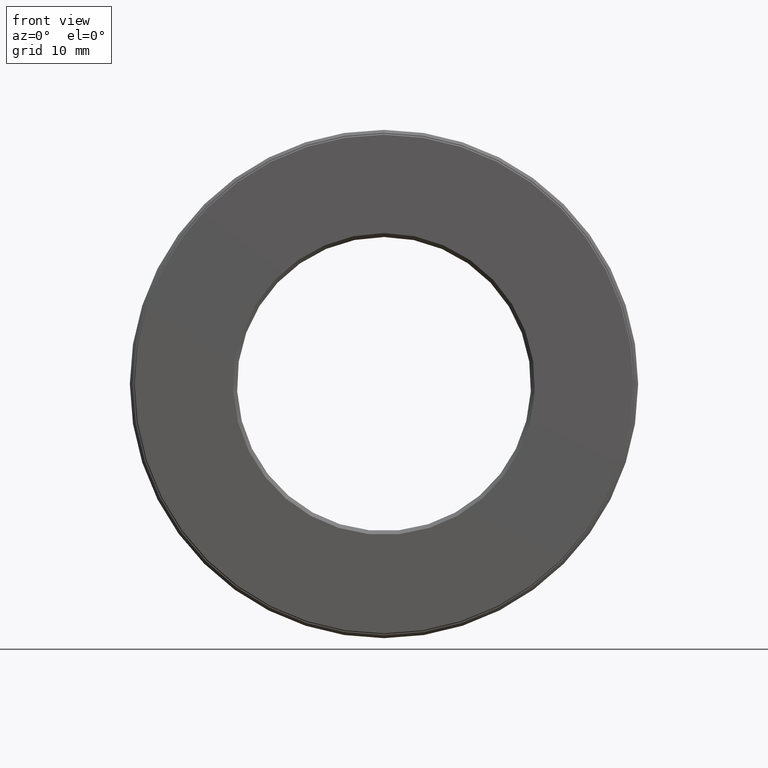
[diagram: clean part render]
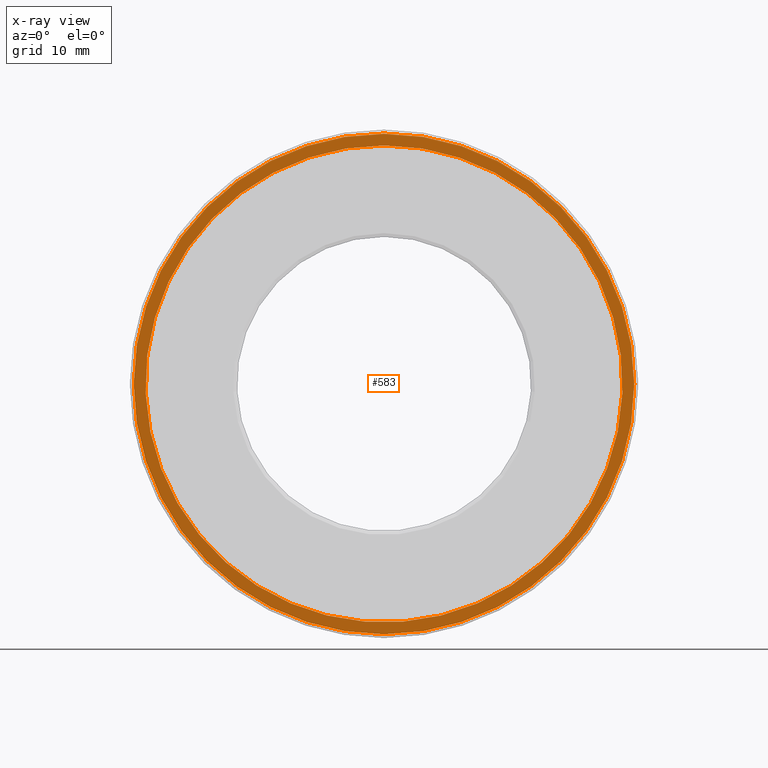
[diagram: x-ray — body ghosted, one internal face saturated and labeled with its STEP entity id]
A machine part, front view, then the same camera in x-ray: the body is ghosted and one INTERNAL B-rep face — a face not visible from any outside direction — is saturated and labeled: STEP entity #583.
In plain terms, the highlighted planar face has unit normal (-0, 1, 0).
Its self-contained STEP definition (entity closure, byte-faithful):
#17 = VERTEX_POINT ( 'NONE', #168 ) ;
#22 = PLANE ( 'NONE',  #510 ) ;
#46 = AXIS2_PLACEMENT_3D ( 'NONE', #560, #282, #103 ) ;
#103 = DIRECTION ( 'NONE',  ( 0.0000000000000000000, 0.0000000000000000000, 1.000000000000000000 ) ) ;
#133 = FACE_OUTER_BOUND ( 'NONE', #266, .T. ) ;
#161 = DIRECTION ( 'NONE',  ( 0.0000000000000000000, 0.0000000000000000000, 1.000000000000000000 ) ) ;
#168 = CARTESIAN_POINT ( 'NONE',  ( 0.0000000000000000000, 0.6524999999999997500, 1.276875000000000000 ) ) ;
#178 = CARTESIAN_POINT ( 'NONE',  ( 0.0000000000000000000, 0.6524999999999997500, 0.0000000000000000000 ) ) ;
#183 = EDGE_LOOP ( 'NONE', ( #244 ) ) ;
#219 = EDGE_CURVE ( 'NONE', #448, #448, #511, .T. ) ;
#244 = ORIENTED_EDGE ( 'NONE', *, *, #219, .T. ) ;
#245 = FACE_BOUND ( 'NONE', #183, .T. ) ;
#254 = CIRCLE ( 'NONE', #300, 1.276875000000000000 ) ;
#266 = EDGE_LOOP ( 'NONE', ( #483 ) ) ;
#281 = CARTESIAN_POINT ( 'NONE',  ( 0.0000000000000000000, 0.6524999999999997500, 0.0000000000000000000 ) ) ;
#282 = DIRECTION ( 'NONE',  ( -0.0000000000000000000, 1.000000000000000000, -0.0000000000000000000 ) ) ;
#300 = AXIS2_PLACEMENT_3D ( 'NONE', #281, #437, #161 ) ;
#349 = DIRECTION ( 'NONE',  ( 0.0000000000000000000, 0.0000000000000000000, 1.000000000000000000 ) ) ;
#356 = EDGE_CURVE ( 'NONE', #17, #17, #254, .T. ) ;
#437 = DIRECTION ( 'NONE',  ( -0.0000000000000000000, 1.000000000000000000, -0.0000000000000000000 ) ) ;
#448 = VERTEX_POINT ( 'NONE', #540 ) ;
#483 = ORIENTED_EDGE ( 'NONE', *, *, #356, .F. ) ;
#494 = DIRECTION ( 'NONE',  ( -0.0000000000000000000, 1.000000000000000000, 0.0000000000000000000 ) ) ;
#510 = AXIS2_PLACEMENT_3D ( 'NONE', #178, #494, #349 ) ;
#511 = CIRCLE ( 'NONE', #46, 1.216875000000000200 ) ;
#540 = CARTESIAN_POINT ( 'NONE',  ( 0.0000000000000000000, 0.6524999999999997500, 1.216875000000000200 ) ) ;
#560 = CARTESIAN_POINT ( 'NONE',  ( 0.0000000000000000000, 0.6524999999999997500, 0.0000000000000000000 ) ) ;
#583 = ADVANCED_FACE ( 'NONE', ( #133, #245 ), #22, .F. ) ;